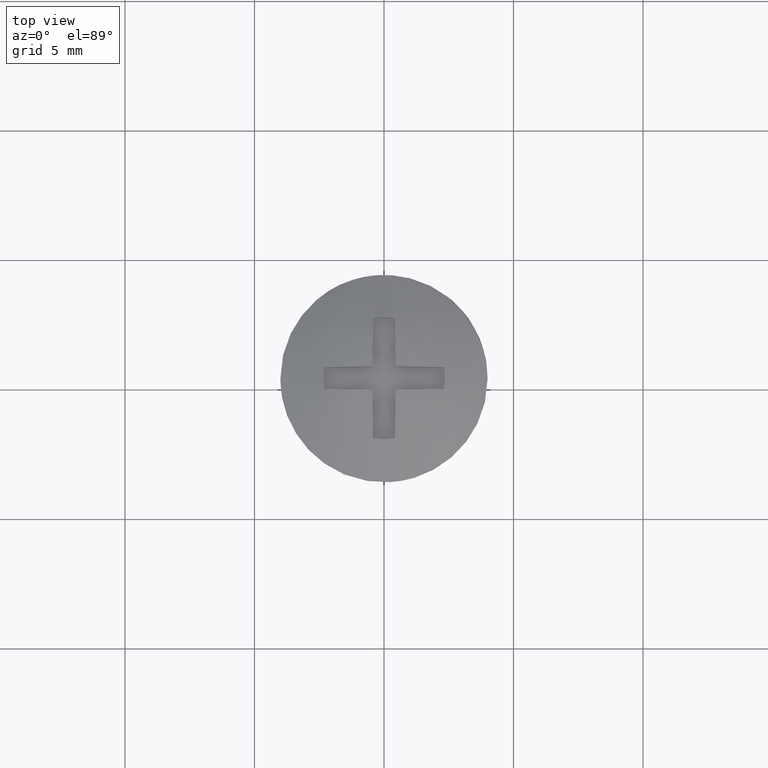
[diagram: clean part render]
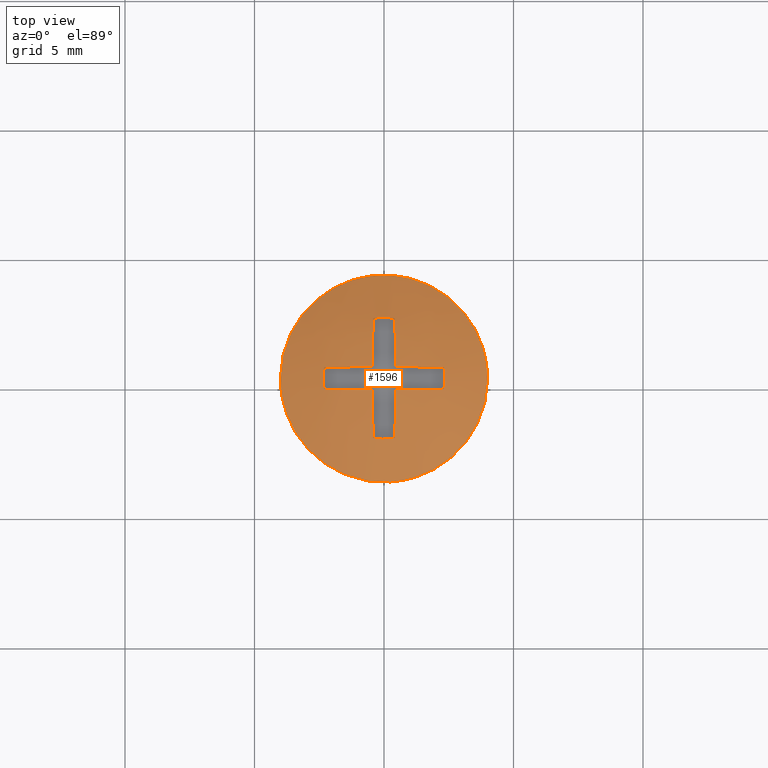
[diagram: same view with one face highlighted and labeled with its STEP entity id]
A machine part, top view. The second image highlights one B-rep face of the part: STEP entity #1596.
In plain terms, the highlighted face is a freeform B-spline surface patch.
Its self-contained STEP definition (entity closure, byte-faithful):
#70=CARTESIAN_POINT('',(-3.744574315104922,-1.406471897570834,-0.000054549080193));
#71=VERTEX_POINT('',#70);
#72=CARTESIAN_POINT('',(-4.0,0.0,-0.000054549080193));
#73=VERTEX_POINT('',#72);
#74=CARTESIAN_POINT('',(-3.744574315104922,-1.406471897570833,-0.000054549080193));
#75=CARTESIAN_POINT('',(-4.0,-0.726429544272058,-0.000054549080193));
#76=CARTESIAN_POINT('',(-4.0,0.0,-0.000054549080193));
#84=(BOUNDED_CURVE()B_SPLINE_CURVE(2,(#74,#75,#76),.UNSPECIFIED.,.F.,.U.)B_SPLINE_CURVE_WITH_KNOTS((3,3),(0.940284170898526,1.0),.UNSPECIFIED.)CURVE()GEOMETRIC_REPRESENTATION_ITEM()RATIONAL_B_SPLINE_CURVE((0.893499554635297,0.930038554401421,1.0))REPRESENTATION_ITEM(''));
#85=EDGE_CURVE('',#71,#73,#84,.T.);
#87=CARTESIAN_POINT('',(4.0,0.0,-0.000054549080193));
#88=VERTEX_POINT('',#87);
#89=CARTESIAN_POINT('',(-4.0,0.0,-0.000054549080193));
#90=CARTESIAN_POINT('',(-4.000000000000000,4.000000000000000,-0.000054549080193));
#91=CARTESIAN_POINT('',(0.0,4.0,-0.000054549080193));
#92=CARTESIAN_POINT('',(4.000000000000000,4.000000000000000,-0.000054549080193));
#93=CARTESIAN_POINT('',(4.0,0.0,-0.000054549080193));
#101=(BOUNDED_CURVE()B_SPLINE_CURVE(2,(#89,#90,#91,#92,#93),.UNSPECIFIED.,.F.,.U.)B_SPLINE_CURVE_WITH_KNOTS((3,2,3),(0.0,0.250000000000000,0.500000000000000),.UNSPECIFIED.)CURVE()GEOMETRIC_REPRESENTATION_ITEM()RATIONAL_B_SPLINE_CURVE((1.0,0.707106781186548,1.0,0.707106781186548,1.0))REPRESENTATION_ITEM(''));
#102=EDGE_CURVE('',#73,#88,#101,.T.);
#104=CARTESIAN_POINT('',(0.244187181445966,-3.992539620388083,-0.000054549079474));
#105=VERTEX_POINT('',#104);
#106=CARTESIAN_POINT('',(4.0,0.0,-0.000054549080193));
#107=CARTESIAN_POINT('',(4.0,-3.762830855196727,-0.000054549080193));
#108=CARTESIAN_POINT('',(0.244187181445966,-3.992539620388083,-0.000054549079474));
#116=(BOUNDED_CURVE()B_SPLINE_CURVE(2,(#106,#107,#108),.UNSPECIFIED.,.F.,.U.)B_SPLINE_CURVE_WITH_KNOTS((3,3),(0.500000000000000,0.739333263755935),.UNSPECIFIED.)CURVE()GEOMETRIC_REPRESENTATION_ITEM()RATIONAL_B_SPLINE_CURVE((1.0,0.719603640037580,0.976072687875880))REPRESENTATION_ITEM(''));
#117=EDGE_CURVE('',#88,#105,#116,.T.);
#225=CARTESIAN_POINT('',(0.244187181445966,-3.992539620388083,-0.000054549079474));
#226=CARTESIAN_POINT('',(0.122207555067107,-4.000000000000000,-0.000054549080193));
#227=CARTESIAN_POINT('',(0.0,-4.0,-0.000054549080193));
#228=CARTESIAN_POINT('',(-2.770438382770512,-4.0,-0.000054549080193));
#229=CARTESIAN_POINT('',(-3.744574315104922,-1.406471897570834,-0.000054549080193));
#237=(BOUNDED_CURVE()B_SPLINE_CURVE(2,(#225,#226,#227,#228,#229),.UNSPECIFIED.,.F.,.U.)B_SPLINE_CURVE_WITH_KNOTS((3,2,3),(0.739333263755935,0.750000000000000,0.940284170898527),.UNSPECIFIED.)CURVE()GEOMETRIC_REPRESENTATION_ITEM()RATIONAL_B_SPLINE_CURVE((0.976072687875880,0.987503141148967,1.0,0.777068226785126,0.893499554635298))REPRESENTATION_ITEM(''));
#238=EDGE_CURVE('',#105,#71,#237,.T.);
#1161=CARTESIAN_POINT('',(-2.312163372429150,0.420000641900767,0.599434616879191));
#1162=VERTEX_POINT('',#1161);
#1169=CARTESIAN_POINT('',(-0.452394242445018,0.452593227179430,0.877989811291734));
#1170=VERTEX_POINT('',#1169);
#1176=CARTESIAN_POINT('',(-2.312163372429149,0.420000641900766,0.599434616879186));
#1177=CARTESIAN_POINT('',(-1.396390394820761,0.436049627975103,0.832956929237539));
#1178=CARTESIAN_POINT('',(-0.452394242445018,0.452593227179430,0.877989811291734));
#1186=(BOUNDED_CURVE()B_SPLINE_CURVE(2,(#1176,#1177,#1178),.UNSPECIFIED.,.F.,.U.)CURVE()GEOMETRIC_REPRESENTATION_ITEM()QUASI_UNIFORM_CURVE()RATIONAL_B_SPLINE_CURVE((1.0,0.994904774247510,1.0))REPRESENTATION_ITEM(''));
#1187=EDGE_CURVE('',#1162,#1170,#1186,.T.);
#1206=CARTESIAN_POINT('',(-2.312163372429150,-0.420000641900767,0.599434616879058));
#1207=VERTEX_POINT('',#1206);
#1208=CARTESIAN_POINT('',(-2.312163372429150,0.420000641900767,0.599434616879191));
#1209=CARTESIAN_POINT('',(-2.388455792463351,-1.084202E-016,0.599434616879099));
#1210=CARTESIAN_POINT('',(-2.312163372429150,-0.420000641900767,0.599434616879058));
#1218=(BOUNDED_CURVE()B_SPLINE_CURVE(2,(#1208,#1209,#1210),.UNSPECIFIED.,.F.,.U.)CURVE()GEOMETRIC_REPRESENTATION_ITEM()QUASI_UNIFORM_CURVE()RATIONAL_B_SPLINE_CURVE((1.0,0.983899307416660,1.0))REPRESENTATION_ITEM(''));
#1219=EDGE_CURVE('',#1162,#1207,#1218,.T.);
#1236=CARTESIAN_POINT('',(-0.452408359943641,-0.452592979769450,0.877989137812526));
#1237=VERTEX_POINT('',#1236);
#1245=CARTESIAN_POINT('',(-0.452408359943641,-0.452592979769450,0.877989137812526));
#1246=CARTESIAN_POINT('',(-1.396397312848710,-0.436049506736263,0.832955165138878));
#1247=CARTESIAN_POINT('',(-2.312163372429150,-0.420000641900767,0.599434616879058));
#1255=(BOUNDED_CURVE()B_SPLINE_CURVE(2,(#1245,#1246,#1247),.UNSPECIFIED.,.F.,.U.)CURVE()GEOMETRIC_REPRESENTATION_ITEM()QUASI_UNIFORM_CURVE()RATIONAL_B_SPLINE_CURVE((1.0,0.994904850641644,1.0))REPRESENTATION_ITEM(''));
#1256=EDGE_CURVE('',#1237,#1207,#1255,.T.);
#1266=CARTESIAN_POINT('',(-0.419997141433095,-2.312164008280560,0.599434616879191));
#1267=VERTEX_POINT('',#1266);
#1275=CARTESIAN_POINT('',(-0.419997141433095,-2.312164008280560,0.599434616879188));
#1276=CARTESIAN_POINT('',(-0.435956820886754,-1.396488544653940,0.832936204263916));
#1277=CARTESIAN_POINT('',(-0.452408359943641,-0.452592979769450,0.877989137812526));
#1285=(BOUNDED_CURVE()B_SPLINE_CURVE(2,(#1275,#1276,#1277),.UNSPECIFIED.,.F.,.U.)CURVE()GEOMETRIC_REPRESENTATION_ITEM()QUASI_UNIFORM_CURVE()RATIONAL_B_SPLINE_CURVE((1.0,0.994905867918749,1.0))REPRESENTATION_ITEM(''));
#1286=EDGE_CURVE('',#1267,#1237,#1285,.T.);
#1305=CARTESIAN_POINT('',(0.419997141433088,-2.312164008280560,0.599434616879058));
#1306=VERTEX_POINT('',#1305);
#1307=CARTESIAN_POINT('',(-0.419997141433095,-2.312164008280560,0.599434616879191));
#1308=CARTESIAN_POINT('',(-2.927346E-015,-2.388455135631491,0.599434616879099));
#1309=CARTESIAN_POINT('',(0.419997141433088,-2.312164008280560,0.599434616879058));
#1317=(BOUNDED_CURVE()B_SPLINE_CURVE(2,(#1307,#1308,#1309),.UNSPECIFIED.,.F.,.U.)CURVE()GEOMETRIC_REPRESENTATION_ITEM()QUASI_UNIFORM_CURVE()RATIONAL_B_SPLINE_CURVE((1.0,0.983899577991728,1.0))REPRESENTATION_ITEM(''));
#1318=EDGE_CURVE('',#1267,#1306,#1317,.T.);
#1335=CARTESIAN_POINT('',(0.452439928843953,-0.450781736159718,0.878075413493905));
#1336=VERTEX_POINT('',#1335);
#1344=CARTESIAN_POINT('',(0.452439928843953,-0.450781736159718,0.878075413493905));
#1345=CARTESIAN_POINT('',(0.435972290710727,-1.395600974306397,0.833162538913365));
#1346=CARTESIAN_POINT('',(0.419997141433088,-2.312164008280560,0.599434616879058));
#1354=(BOUNDED_CURVE()B_SPLINE_CURVE(2,(#1344,#1345,#1346),.UNSPECIFIED.,.F.,.U.)CURVE()GEOMETRIC_REPRESENTATION_ITEM()QUASI_UNIFORM_CURVE()RATIONAL_B_SPLINE_CURVE((1.0,0.994896063094345,1.0))REPRESENTATION_ITEM(''));
#1355=EDGE_CURVE('',#1336,#1306,#1354,.T.);
#1365=CARTESIAN_POINT('',(2.312163378926475,-0.420000606132073,0.599434616879191));
#1366=VERTEX_POINT('',#1365);
#1374=CARTESIAN_POINT('',(2.312163378926475,-0.420000606132073,0.599434616879191));
#1375=CARTESIAN_POINT('',(1.396417165324461,-0.435157538885680,0.832991535529156));
#1376=CARTESIAN_POINT('',(0.452439928843953,-0.450781736159718,0.878075413493905));
#1384=(BOUNDED_CURVE()B_SPLINE_CURVE(2,(#1374,#1375,#1376),.UNSPECIFIED.,.F.,.U.)CURVE()GEOMETRIC_REPRESENTATION_ITEM()QUASI_UNIFORM_CURVE()RATIONAL_B_SPLINE_CURVE((1.0,0.994905237488468,1.0))REPRESENTATION_ITEM(''));
#1385=EDGE_CURVE('',#1366,#1336,#1384,.T.);
#1404=CARTESIAN_POINT('',(2.312163372429150,0.420000641900767,0.599434616879058));
#1405=VERTEX_POINT('',#1404);
#1406=CARTESIAN_POINT('',(2.312163378926475,-0.420000606132073,0.599434616879191));
#1407=CARTESIAN_POINT('',(2.388455789107495,0.000000018474462,0.599434616879099));
#1408=CARTESIAN_POINT('',(2.312163372429150,0.420000641900767,0.599434616879058));
#1416=(BOUNDED_CURVE()B_SPLINE_CURVE(2,(#1406,#1407,#1408),.UNSPECIFIED.,.F.,.U.)CURVE()GEOMETRIC_REPRESENTATION_ITEM()QUASI_UNIFORM_CURVE()RATIONAL_B_SPLINE_CURVE((1.0,0.983899308799070,1.0))REPRESENTATION_ITEM(''));
#1417=EDGE_CURVE('',#1366,#1405,#1416,.T.);
#1434=CARTESIAN_POINT('',(0.452425794675152,0.452592674224370,0.877988306054220));
#1435=VERTEX_POINT('',#1434);
#1443=CARTESIAN_POINT('',(0.452425794675152,0.452592674224370,0.877988306054220));
#1444=CARTESIAN_POINT('',(1.396405856426563,0.436049357009370,0.832952986524636));
#1445=CARTESIAN_POINT('',(2.312163372429150,0.420000641900767,0.599434616879058));
#1453=(BOUNDED_CURVE()B_SPLINE_CURVE(2,(#1443,#1444,#1445),.UNSPECIFIED.,.F.,.U.)CURVE()GEOMETRIC_REPRESENTATION_ITEM()QUASI_UNIFORM_CURVE()RATIONAL_B_SPLINE_CURVE((1.0,0.994904944985566,1.0))REPRESENTATION_ITEM(''));
#1454=EDGE_CURVE('',#1435,#1405,#1453,.T.);
#1464=CARTESIAN_POINT('',(0.420014626196996,2.312160832161250,0.599434616879191));
#1465=VERTEX_POINT('',#1464);
#1473=CARTESIAN_POINT('',(0.420014626196996,2.312160832161250,0.599434616879191));
#1474=CARTESIAN_POINT('',(0.435974281737292,1.396486740547515,0.832935501751080));
#1475=CARTESIAN_POINT('',(0.452425794675152,0.452592674224370,0.877988306054220));
#1483=(BOUNDED_CURVE()B_SPLINE_CURVE(2,(#1473,#1474,#1475),.UNSPECIFIED.,.F.,.U.)CURVE()GEOMETRIC_REPRESENTATION_ITEM()QUASI_UNIFORM_CURVE()RATIONAL_B_SPLINE_CURVE((1.0,0.994905883067991,1.0))REPRESENTATION_ITEM(''));
#1484=EDGE_CURVE('',#1465,#1435,#1483,.T.);
#1503=CARTESIAN_POINT('',(-0.420014611924039,2.312160834753995,0.599434616879058));
#1504=VERTEX_POINT('',#1503);
#1505=CARTESIAN_POINT('',(0.420014626196996,2.312160832161250,0.599434616879191));
#1506=CARTESIAN_POINT('',(7.371971E-009,2.388458415213968,0.599434616879099));
#1507=CARTESIAN_POINT('',(-0.420014611924039,2.312160834753995,0.599434616879058));
#1515=(BOUNDED_CURVE()B_SPLINE_CURVE(2,(#1505,#1506,#1507),.UNSPECIFIED.,.F.,.U.)CURVE()GEOMETRIC_REPRESENTATION_ITEM()QUASI_UNIFORM_CURVE()RATIONAL_B_SPLINE_CURVE((1.0,0.983898227003244,1.0))REPRESENTATION_ITEM(''));
#1516=EDGE_CURVE('',#1465,#1504,#1515,.T.);
#1536=CARTESIAN_POINT('',(-0.452394242445018,0.452593227179430,0.877989811291734));
#1537=CARTESIAN_POINT('',(-0.435958736481214,1.396487089235294,0.832936135225205));
#1538=CARTESIAN_POINT('',(-0.420014611924039,2.312160834753995,0.599434616879058));
#1546=(BOUNDED_CURVE()B_SPLINE_CURVE(2,(#1536,#1537,#1538),.UNSPECIFIED.,.F.,.U.)CURVE()GEOMETRIC_REPRESENTATION_ITEM()QUASI_UNIFORM_CURVE()RATIONAL_B_SPLINE_CURVE((1.0,0.994905889874831,1.0))REPRESENTATION_ITEM(''));
#1547=EDGE_CURVE('',#1170,#1504,#1546,.T.);
#1552=CARTESIAN_POINT('',(-4.118002080251451,-4.117317433667229,-1.137934574936028));
#1553=CARTESIAN_POINT('',(-2.177828193907239,-4.354932229543098,-0.177622052000846));
#1554=CARTESIAN_POINT('',(2.177828278141165,-4.354932229543099,-0.177622052000846));
#1555=CARTESIAN_POINT('',(4.118002222146429,-4.117317416289224,-1.137934645168663));
#1556=CARTESIAN_POINT('',(-4.355572812468516,-2.177424334046060,-0.177959762906064));
#1557=CARTESIAN_POINT('',(-2.311163570260413,-2.310779323187894,0.899939999999997));
#1558=CARTESIAN_POINT('',(2.311163659651478,-2.310779323187894,0.899939999999997));
#1559=CARTESIAN_POINT('',(4.355572961488963,-2.177424324325591,-0.177959841476001));
#1560=CARTESIAN_POINT('',(-4.355572812468516,2.177769265355086,-0.177959762906064));
#1561=CARTESIAN_POINT('',(-2.311163570260413,2.311145379598835,0.899939999999997));
#1562=CARTESIAN_POINT('',(2.311163659651478,2.311145379598835,0.899939999999997));
#1563=CARTESIAN_POINT('',(4.355572961488963,2.177769255633076,-0.177959841476001));
#1564=CARTESIAN_POINT('',(-4.117930912924882,4.117898501593809,-1.138222147568859));
#1565=CARTESIAN_POINT('',(-2.177788384627275,4.355542487465063,-0.177943774341770));
#1566=CARTESIAN_POINT('',(2.177788468859661,4.355542487465063,-0.177943774341770));
#1567=CARTESIAN_POINT('',(4.117931054817706,4.117898484213653,-1.138222217799068));
#1575=(BOUNDED_SURFACE()B_SPLINE_SURFACE(2,2,((#1552,#1556,#1560,#1564),(#1553,#1557,#1561,#1565),(#1554,#1558,#1562,#1566),(#1555,#1559,#1563,#1567)),.UNSPECIFIED.,.F.,.F.,.U.)B_SPLINE_SURFACE_WITH_KNOTS((3,1,3),(3,1,3),(0.0,4.485009183729333,8.970018540929619),(0.0,4.484263519652916,8.969237402858616),.UNSPECIFIED.)GEOMETRIC_REPRESENTATION_ITEM()RATIONAL_B_SPLINE_SURFACE(((1.122468384046707,1.061244373481413,1.061244373481413,1.122487782884556),(1.061224010565295,1.0,1.0,1.061243409403143),(1.061224010565295,1.0,1.0,1.061243409403143),(1.122468388784321,1.061244378219026,1.061244378219026,1.122487787622170)))REPRESENTATION_ITEM('')SURFACE());
#1576=ORIENTED_EDGE('',*,*,#102,.F.);
#1577=ORIENTED_EDGE('',*,*,#85,.F.);
#1578=ORIENTED_EDGE('',*,*,#238,.F.);
#1579=ORIENTED_EDGE('',*,*,#117,.F.);
#1580=EDGE_LOOP('',(#1576,#1577,#1578,#1579));
#1581=FACE_OUTER_BOUND('',#1580,.T.);
#1582=ORIENTED_EDGE('',*,*,#1187,.T.);
#1583=ORIENTED_EDGE('',*,*,#1547,.T.);
#1584=ORIENTED_EDGE('',*,*,#1516,.F.);
#1585=ORIENTED_EDGE('',*,*,#1484,.T.);
#1586=ORIENTED_EDGE('',*,*,#1454,.T.);
#1587=ORIENTED_EDGE('',*,*,#1417,.F.);
#1588=ORIENTED_EDGE('',*,*,#1385,.T.);
#1589=ORIENTED_EDGE('',*,*,#1355,.T.);
#1590=ORIENTED_EDGE('',*,*,#1318,.F.);
#1591=ORIENTED_EDGE('',*,*,#1286,.T.);
#1592=ORIENTED_EDGE('',*,*,#1256,.T.);
#1593=ORIENTED_EDGE('',*,*,#1219,.F.);
#1594=EDGE_LOOP('',(#1582,#1583,#1584,#1585,#1586,#1587,#1588,#1589,#1590,#1591,#1592,#1593));
#1595=FACE_BOUND('',#1594,.T.);
#1596=ADVANCED_FACE('',(#1581,#1595),#1575,.T.);